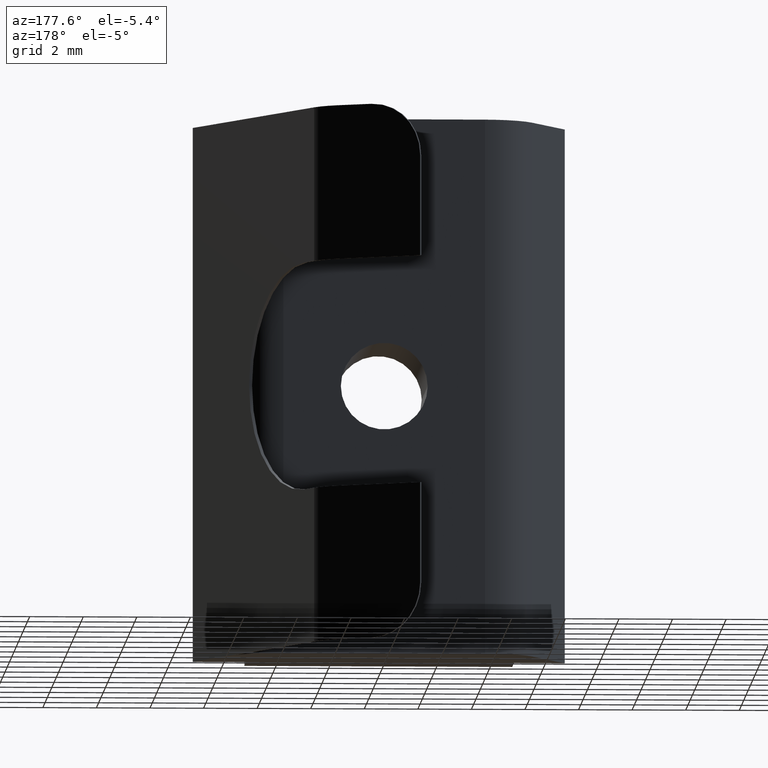
[diagram: clean part render]
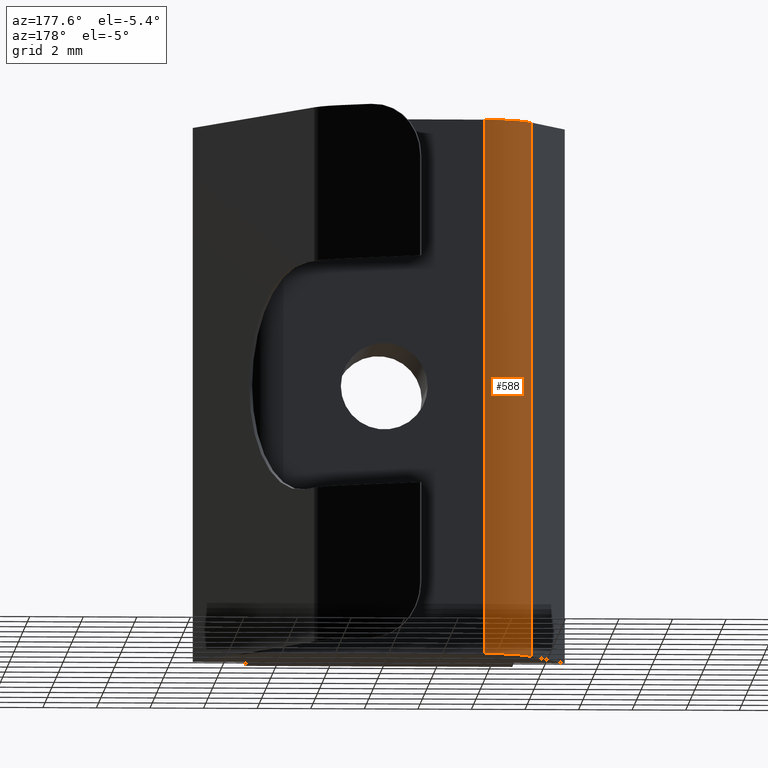
[diagram: same view with one face highlighted and labeled with its STEP entity id]
A machine part, auxiliary view. The second image highlights one B-rep face of the part: STEP entity #588.
In plain terms, the highlighted cylindrical surface (partial cylindrical patch) has radius 2 mm, axis along (0, 0, 1).
Its self-contained STEP definition (entity closure, byte-faithful):
#61=FACE_OUTER_BOUND('',#92,.T.);
#92=EDGE_LOOP('',(#527,#528,#529,#530));
#151=LINE('',#983,#215);
#158=LINE('',#999,#222);
#215=VECTOR('',#800,10.);
#222=VECTOR('',#813,10.);
#244=CIRCLE('',#649,2.);
#247=CIRCLE('',#659,2.);
#287=VERTEX_POINT('',#950);
#288=VERTEX_POINT('',#952);
#297=VERTEX_POINT('',#981);
#303=VERTEX_POINT('',#995);
#359=EDGE_CURVE('',#288,#287,#244,.T.);
#374=EDGE_CURVE('',#287,#297,#151,.T.);
#381=EDGE_CURVE('',#297,#303,#247,.T.);
#382=EDGE_CURVE('',#303,#288,#158,.T.);
#527=ORIENTED_EDGE('',*,*,#359,.T.);
#528=ORIENTED_EDGE('',*,*,#374,.T.);
#529=ORIENTED_EDGE('',*,*,#381,.T.);
#530=ORIENTED_EDGE('',*,*,#382,.T.);
#564=CYLINDRICAL_SURFACE('',#660,2.);
#588=ADVANCED_FACE('',(#61),#564,.T.);
#649=AXIS2_PLACEMENT_3D('',#953,#770,#771);
#659=AXIS2_PLACEMENT_3D('',#997,#809,#810);
#660=AXIS2_PLACEMENT_3D('',#998,#811,#812);
#770=DIRECTION('center_axis',(0.,0.,-1.));
#771=DIRECTION('ref_axis',(-0.525731112119134,0.85065080835204,0.));
#800=DIRECTION('',(0.,0.,-1.));
#809=DIRECTION('center_axis',(0.,0.,1.));
#810=DIRECTION('ref_axis',(-0.525731112119134,0.85065080835204,0.));
#811=DIRECTION('center_axis',(0.,0.,1.));
#812=DIRECTION('ref_axis',(-0.525731112119134,0.85065080835204,0.));
#813=DIRECTION('',(0.,0.,1.));
#950=CARTESIAN_POINT('',(-3.76393202250021,3.8,20.));
#952=CARTESIAN_POINT('',(-5.55278640450004,2.69442719099992,20.));
#953=CARTESIAN_POINT('Origin',(-3.76393202250021,1.8,20.));
#981=CARTESIAN_POINT('',(-3.76393202250021,3.8,0.));
#983=CARTESIAN_POINT('',(-3.76393202250021,3.8,0.));
#995=CARTESIAN_POINT('',(-5.55278640450004,2.69442719099992,0.));
#997=CARTESIAN_POINT('Origin',(-3.76393202250021,1.8,0.));
#998=CARTESIAN_POINT('Origin',(-3.76393202250021,1.8,0.));
#999=CARTESIAN_POINT('',(-5.55278640450004,2.69442719099992,0.));